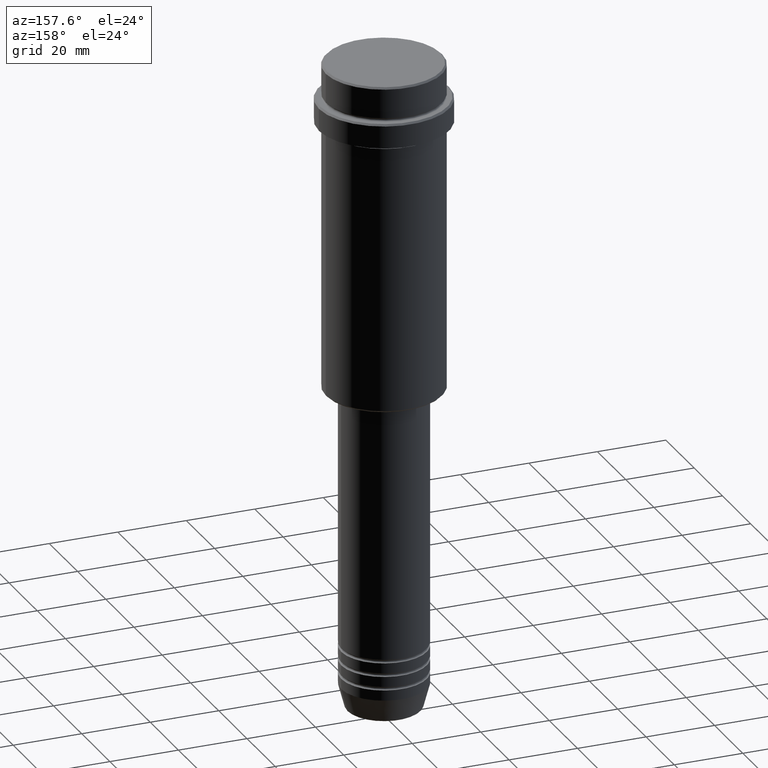
[diagram: clean part render]
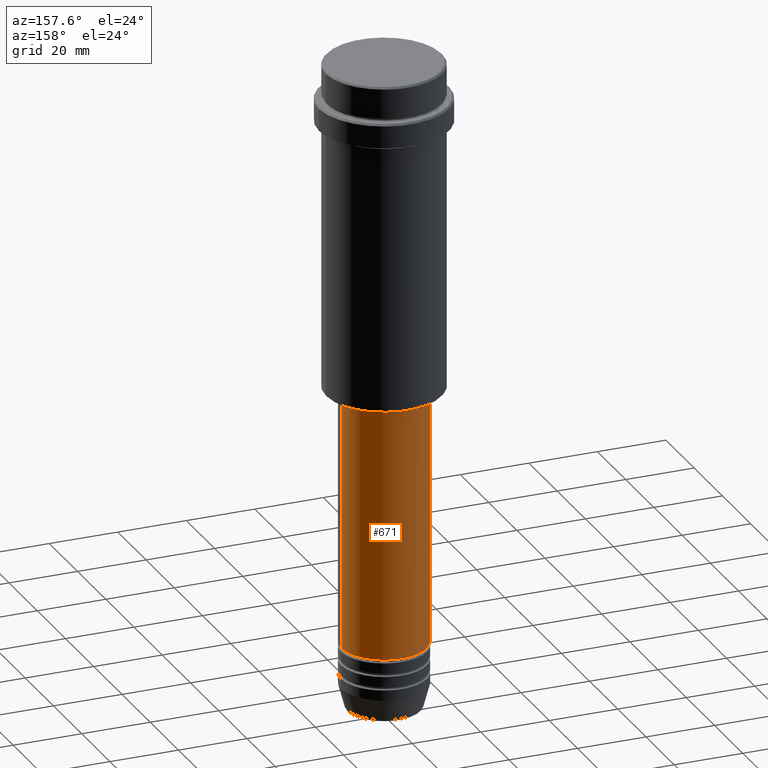
[diagram: same view with one face highlighted and labeled with its STEP entity id]
A machine part, auxiliary view. The second image highlights one B-rep face of the part: STEP entity #671.
In plain terms, the highlighted cylindrical surface (partial cylindrical patch) has radius 12.5 mm, axis along (-0, -0, 1).
Its self-contained STEP definition (entity closure, byte-faithful):
#1 = ORIENTED_EDGE ( 'NONE', *, *, #475, .F. ) ;
#11 = LINE ( 'NONE', #673, #370 ) ;
#18 = EDGE_CURVE ( 'NONE', #42, #1084, #407, .T. ) ;
#42 = VERTEX_POINT ( 'NONE', #872 ) ;
#88 = DIRECTION ( 'NONE',  ( -0.000000000000000000, -0.000000000000000000, 1.000000000000000000 ) ) ;
#209 = FACE_OUTER_BOUND ( 'NONE', #377, .T. ) ;
#226 = CARTESIAN_POINT ( 'NONE',  ( 0.000000000000000000, 0.000000000000000000, -96.99999999999998579 ) ) ;
#296 = DIRECTION ( 'NONE',  ( 1.000000000000000000, 0.000000000000000000, 0.000000000000000000 ) ) ;
#305 = VERTEX_POINT ( 'NONE', #1135 ) ;
#321 = CARTESIAN_POINT ( 'NONE',  ( 12.50000000000000000, 0.000000000000000000, 0.000000000000000000 ) ) ;
#368 = VECTOR ( 'NONE', #1292, 1000.000000000000000 ) ;
#370 = VECTOR ( 'NONE', #913, 1000.000000000000000 ) ;
#377 = EDGE_LOOP ( 'NONE', ( #1392, #452, #1, #1156 ) ) ;
#407 = LINE ( 'NONE', #321, #368 ) ;
#452 = ORIENTED_EDGE ( 'NONE', *, *, #493, .T. ) ;
#475 = EDGE_CURVE ( 'NONE', #1084, #305, #1094, .T. ) ;
#493 = EDGE_CURVE ( 'NONE', #851, #305, #11, .T. ) ;
#550 = CYLINDRICAL_SURFACE ( 'NONE', #581, 12.50000000000000000 ) ;
#566 = DIRECTION ( 'NONE',  ( -0.000000000000000000, -0.000000000000000000, 1.000000000000000000 ) ) ;
#581 = AXIS2_PLACEMENT_3D ( 'NONE', #899, #886, #1219 ) ;
#671 = ADVANCED_FACE ( 'NONE', ( #209 ), #550, .T. ) ;
#673 = CARTESIAN_POINT ( 'NONE',  ( -12.50000000000000000, 1.530808498934191521E-15, 0.000000000000000000 ) ) ;
#782 = CARTESIAN_POINT ( 'NONE',  ( 12.50000000000000000, 0.000000000000000000, -96.99999999999998579 ) ) ;
#851 = VERTEX_POINT ( 'NONE', #1339 ) ;
#859 = AXIS2_PLACEMENT_3D ( 'NONE', #1085, #88, #296 ) ;
#872 = CARTESIAN_POINT ( 'NONE',  ( 12.50000000000000000, 0.000000000000000000, -170.9999999999999147 ) ) ;
#886 = DIRECTION ( 'NONE',  ( -0.000000000000000000, -0.000000000000000000, 1.000000000000000000 ) ) ;
#899 = CARTESIAN_POINT ( 'NONE',  ( 0.000000000000000000, 0.000000000000000000, 0.000000000000000000 ) ) ;
#913 = DIRECTION ( 'NONE',  ( -0.000000000000000000, -0.000000000000000000, 1.000000000000000000 ) ) ;
#942 = EDGE_CURVE ( 'NONE', #42, #851, #1270, .T. ) ;
#993 = DIRECTION ( 'NONE',  ( 1.000000000000000000, 0.000000000000000000, 0.000000000000000000 ) ) ;
#1004 = AXIS2_PLACEMENT_3D ( 'NONE', #226, #566, #993 ) ;
#1084 = VERTEX_POINT ( 'NONE', #782 ) ;
#1085 = CARTESIAN_POINT ( 'NONE',  ( 0.000000000000000000, 0.000000000000000000, -170.9999999999999147 ) ) ;
#1094 = CIRCLE ( 'NONE', #1004, 12.50000000000000000 ) ;
#1135 = CARTESIAN_POINT ( 'NONE',  ( -12.50000000000000000, 1.530808498934191521E-15, -96.99999999999998579 ) ) ;
#1156 = ORIENTED_EDGE ( 'NONE', *, *, #18, .F. ) ;
#1219 = DIRECTION ( 'NONE',  ( 1.000000000000000000, 0.000000000000000000, 0.000000000000000000 ) ) ;
#1270 = CIRCLE ( 'NONE', #859, 12.50000000000000000 ) ;
#1292 = DIRECTION ( 'NONE',  ( -0.000000000000000000, -0.000000000000000000, 1.000000000000000000 ) ) ;
#1339 = CARTESIAN_POINT ( 'NONE',  ( -12.50000000000000000, 1.530808498934191521E-15, -170.9999999999999147 ) ) ;
#1392 = ORIENTED_EDGE ( 'NONE', *, *, #942, .T. ) ;